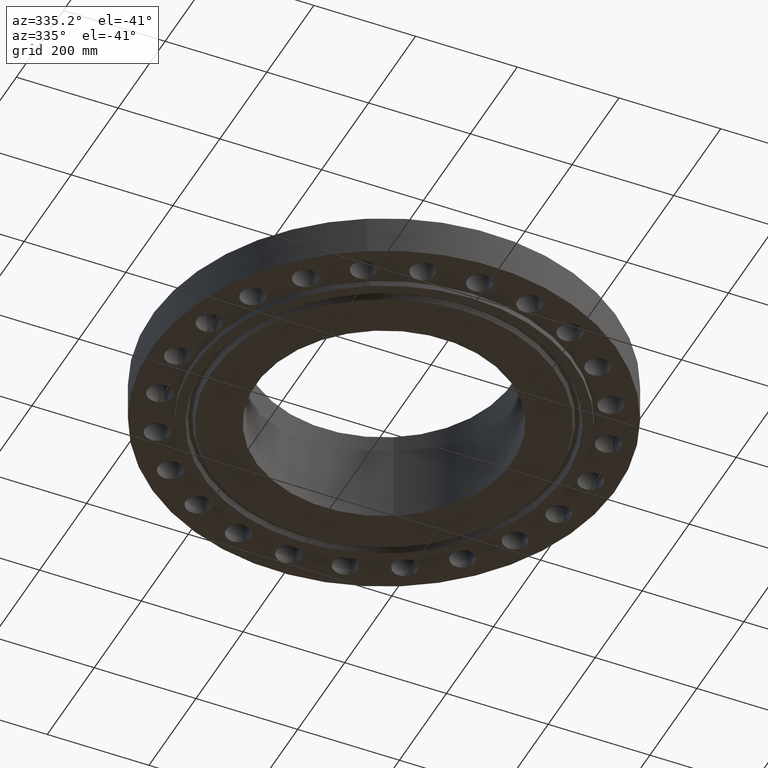
[diagram: clean part render]
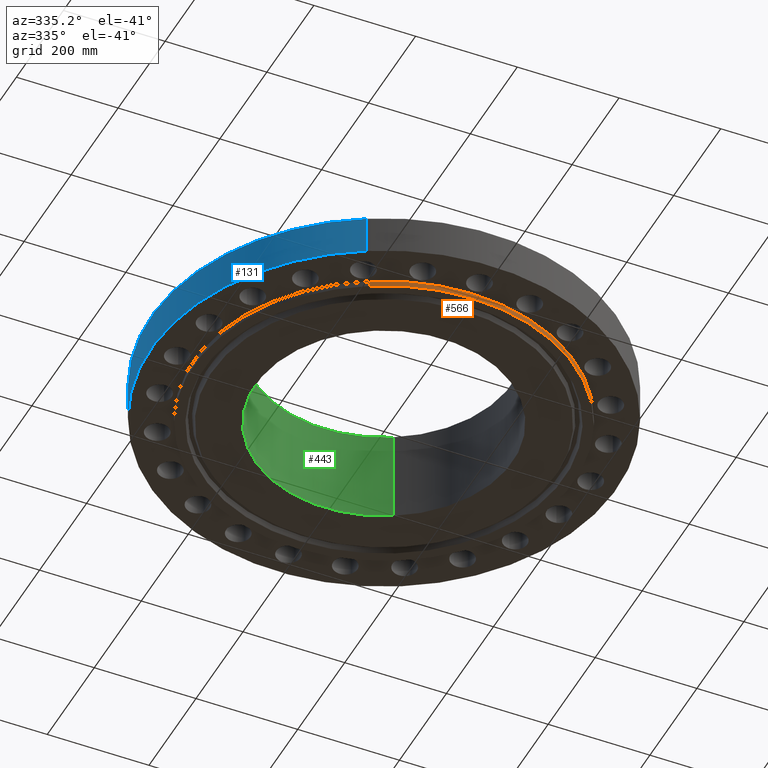
[diagram: same view with three faces highlighted in distinct colors, each labeled with its STEP entity id]
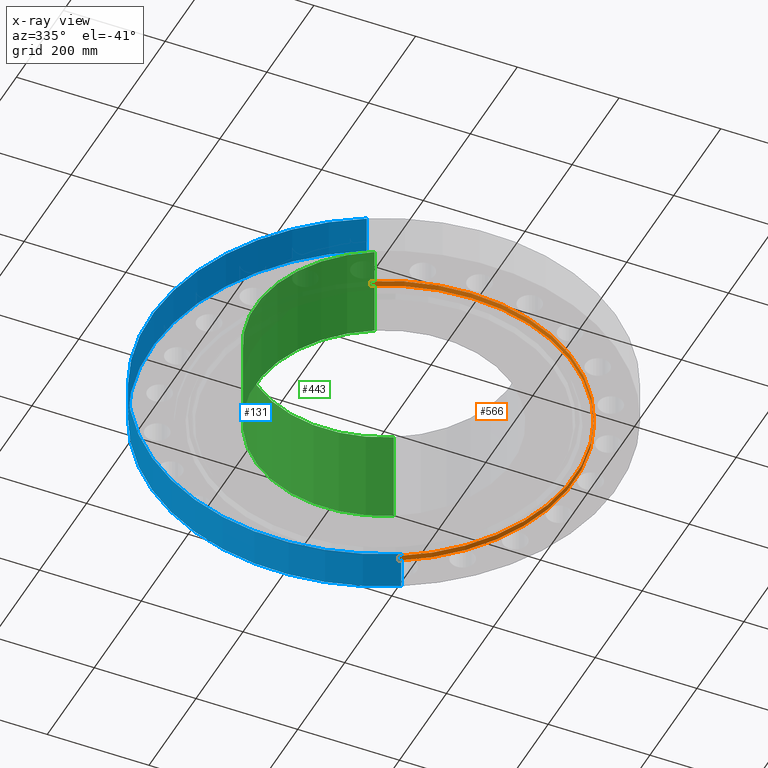
[diagram: x-ray of the same camera — body ghosted, the three highlighted faces saturated]
A machine part, auxiliary view with three faces highlighted in distinct colors.
The next image is the same camera in x-ray (body ghosted, the three faces saturated) — at least one of them is partly hidden behind the body in this view.
Their STEP definitions:

[orange] entity #566 — the highlighted cylindrical surface (partial cylindrical patch) has radius 374.65 mm, axis along (0, 0, -1).
#513=AXIS2_PLACEMENT_3D('Cylinder Axis2P3D',#510,#511,#512) ;
#552=AXIS2_PLACEMENT_3D('Circle Axis2P3D',#550,#551,$) ;
#557=AXIS2_PLACEMENT_3D('Circle Axis2P3D',#555,#556,$) ;
#510=CARTESIAN_POINT('Axis2P3D Location',(0.,0.,3.22100000001)) ;
#519=CARTESIAN_POINT('Vertex',(-7.07152669444,-12.9443427879,-0.438000000002)) ;
#521=CARTESIAN_POINT('Vertex',(7.07152669444,12.9443427879,-0.438000000002)) ;
#524=CARTESIAN_POINT('Line Origine',(-7.07152669444,-12.9443427879,-0.219000000001)) ;
#528=CARTESIAN_POINT('Vertex',(-7.07152669444,-12.9443427879,1.67844740731E-015)) ;
#535=CARTESIAN_POINT('Vertex',(7.07152669444,12.9443427879,1.67844740731E-015)) ;
#538=CARTESIAN_POINT('Line Origine',(7.07152669444,12.9443427879,-0.219000000001)) ;
#550=CARTESIAN_POINT('Axis2P3D Location',(0.,0.,-0.438000000002)) ;
#555=CARTESIAN_POINT('Axis2P3D Location',(0.,0.,1.67844740731E-015)) ;
#511=DIRECTION('Axis2P3D Direction',(0.,0.,-0.0393700787402)) ;
#512=DIRECTION('Axis2P3D XDirection',(0.0188750212049,0.0345504945626,0.)) ;
#525=DIRECTION('Vector Direction',(0.,0.,-0.0393700787402)) ;
#539=DIRECTION('Vector Direction',(0.,0.,-0.0393700787402)) ;
#551=DIRECTION('Axis2P3D Direction',(0.,0.,-0.0393700787402)) ;
#556=DIRECTION('Axis2P3D Direction',(0.,0.,-0.0393700787402)) ;
#526=VECTOR('Line Direction',#525,0.0393700787402) ;
#540=VECTOR('Line Direction',#539,0.0393700787402) ;
#561=ORIENTED_EDGE('',*,*,#554,.F.) ;
#562=ORIENTED_EDGE('',*,*,#542,.T.) ;
#563=ORIENTED_EDGE('',*,*,#559,.T.) ;
#564=ORIENTED_EDGE('',*,*,#530,.F.) ;
#566=ADVANCED_FACE('PartBody',(#565),#514,.T.) ;
#553=CIRCLE('generated circle',#552,14.7500000001) ;
#558=CIRCLE('generated circle',#557,14.7500000001) ;
#514=CYLINDRICAL_SURFACE('generated cylinder',#513,14.7500000001) ;
#530=EDGE_CURVE('',#520,#529,#527,.F.) ;
#542=EDGE_CURVE('',#522,#536,#541,.F.) ;
#554=EDGE_CURVE('',#522,#520,#553,.T.) ;
#559=EDGE_CURVE('',#536,#529,#558,.T.) ;
#560=EDGE_LOOP('',(#561,#562,#563,#564)) ;
#565=FACE_OUTER_BOUND('',#560,.T.) ;
#527=LINE('Line',#524,#526) ;
#541=LINE('Line',#538,#540) ;
#520=VERTEX_POINT('',#519) ;
#522=VERTEX_POINT('',#521) ;
#529=VERTEX_POINT('',#528) ;
#536=VERTEX_POINT('',#535) ;

[blue] entity #131 — the highlighted cylindrical surface (partial cylindrical patch) has radius 457.2 mm, axis along (0, 0, -1).
#95=AXIS2_PLACEMENT_3D('Cylinder Axis2P3D',#92,#93,#94) ;
#99=AXIS2_PLACEMENT_3D('Circle Axis2P3D',#97,#98,$) ;
#115=AXIS2_PLACEMENT_3D('Circle Axis2P3D',#113,#114,$) ;
#92=CARTESIAN_POINT('Axis2P3D Location',(0.,0.,3.22100000001)) ;
#97=CARTESIAN_POINT('Axis2P3D Location',(0.,0.,2.23792987641E-015)) ;
#101=CARTESIAN_POINT('Vertex',(-8.62965969491,-15.7964861141,2.23792987641E-015)) ;
#103=CARTESIAN_POINT('Vertex',(8.62965969491,15.7964861141,2.23792987641E-015)) ;
#106=CARTESIAN_POINT('Line Origine',(-8.62965969491,-15.7964861141,1.50000000001)) ;
#110=CARTESIAN_POINT('Vertex',(-8.62965969491,-15.7964861141,3.00000000001)) ;
#113=CARTESIAN_POINT('Axis2P3D Location',(0.,0.,3.00000000001)) ;
#117=CARTESIAN_POINT('Vertex',(8.62965969491,15.7964861141,3.00000000001)) ;
#120=CARTESIAN_POINT('Line Origine',(8.62965969491,15.7964861141,1.50000000001)) ;
#93=DIRECTION('Axis2P3D Direction',(0.,0.,-0.0393700787402)) ;
#94=DIRECTION('Axis2P3D XDirection',(0.0188750212049,0.0345504945626,0.)) ;
#98=DIRECTION('Axis2P3D Direction',(0.,0.,-0.0393700787402)) ;
#107=DIRECTION('Vector Direction',(0.,0.,-0.0393700787402)) ;
#114=DIRECTION('Axis2P3D Direction',(0.,0.,-0.0393700787402)) ;
#121=DIRECTION('Vector Direction',(0.,0.,-0.0393700787402)) ;
#108=VECTOR('Line Direction',#107,0.0393700787402) ;
#122=VECTOR('Line Direction',#121,0.0393700787402) ;
#126=ORIENTED_EDGE('',*,*,#105,.F.) ;
#127=ORIENTED_EDGE('',*,*,#112,.T.) ;
#128=ORIENTED_EDGE('',*,*,#119,.T.) ;
#129=ORIENTED_EDGE('',*,*,#124,.F.) ;
#131=ADVANCED_FACE('PartBody',(#130),#96,.T.) ;
#100=CIRCLE('generated circle',#99,18.0000000001) ;
#116=CIRCLE('generated circle',#115,18.0000000001) ;
#96=CYLINDRICAL_SURFACE('generated cylinder',#95,18.0000000001) ;
#105=EDGE_CURVE('',#102,#104,#100,.T.) ;
#112=EDGE_CURVE('',#102,#111,#109,.F.) ;
#119=EDGE_CURVE('',#111,#118,#116,.T.) ;
#124=EDGE_CURVE('',#104,#118,#123,.F.) ;
#125=EDGE_LOOP('',(#126,#127,#128,#129)) ;
#130=FACE_OUTER_BOUND('',#125,.T.) ;
#109=LINE('Line',#106,#108) ;
#123=LINE('Line',#120,#122) ;
#102=VERTEX_POINT('',#101) ;
#104=VERTEX_POINT('',#103) ;
#111=VERTEX_POINT('',#110) ;
#118=VERTEX_POINT('',#117) ;

[green] entity #443 — the highlighted cylindrical surface (partial cylindrical patch) has radius 252.425 mm, axis along (0, 0, -1).
#365=AXIS2_PLACEMENT_3D('Circle Axis2P3D',#363,#364,$) ;
#416=AXIS2_PLACEMENT_3D('Cylinder Axis2P3D',#413,#414,#415) ;
#427=AXIS2_PLACEMENT_3D('Circle Axis2P3D',#425,#426,$) ;
#363=CARTESIAN_POINT('Axis2P3D Location',(0.,0.,6.88000000003)) ;
#367=CARTESIAN_POINT('Vertex',(-4.76453100267,-8.7214155001,6.88000000003)) ;
#369=CARTESIAN_POINT('Vertex',(4.76453100267,8.7214155001,6.88000000003)) ;
#413=CARTESIAN_POINT('Axis2P3D Location',(0.,0.,3.22100000001)) ;
#418=CARTESIAN_POINT('Line Origine',(-4.76453100267,-8.7214155001,3.22100000001)) ;
#422=CARTESIAN_POINT('Vertex',(-4.76453100267,-8.7214155001,-0.438000000002)) ;
#425=CARTESIAN_POINT('Axis2P3D Location',(0.,0.,-0.438000000002)) ;
#429=CARTESIAN_POINT('Vertex',(4.76453100267,8.7214155001,-0.438000000002)) ;
#432=CARTESIAN_POINT('Line Origine',(4.76453100267,8.7214155001,3.22100000001)) ;
#364=DIRECTION('Axis2P3D Direction',(0.,0.,-0.0393700787402)) ;
#414=DIRECTION('Axis2P3D Direction',(0.,0.,-0.0393700787402)) ;
#415=DIRECTION('Axis2P3D XDirection',(0.0188750212049,0.0345504945626,0.)) ;
#419=DIRECTION('Vector Direction',(0.,0.,-0.0393700787402)) ;
#426=DIRECTION('Axis2P3D Direction',(0.,0.,-0.0393700787402)) ;
#433=DIRECTION('Vector Direction',(0.,0.,-0.0393700787402)) ;
#420=VECTOR('Line Direction',#419,0.0393700787402) ;
#434=VECTOR('Line Direction',#433,0.0393700787402) ;
#438=ORIENTED_EDGE('',*,*,#371,.F.) ;
#439=ORIENTED_EDGE('',*,*,#424,.T.) ;
#440=ORIENTED_EDGE('',*,*,#431,.T.) ;
#441=ORIENTED_EDGE('',*,*,#436,.F.) ;
#443=ADVANCED_FACE('PartBody',(#442),#417,.F.) ;
#366=CIRCLE('generated circle',#365,9.93800000004) ;
#428=CIRCLE('generated circle',#427,9.93800000004) ;
#417=CYLINDRICAL_SURFACE('generated cylinder',#416,9.93800000004) ;
#371=EDGE_CURVE('',#368,#370,#366,.T.) ;
#424=EDGE_CURVE('',#368,#423,#421,.T.) ;
#431=EDGE_CURVE('',#423,#430,#428,.T.) ;
#436=EDGE_CURVE('',#370,#430,#435,.T.) ;
#437=EDGE_LOOP('',(#438,#439,#440,#441)) ;
#442=FACE_OUTER_BOUND('',#437,.T.) ;
#421=LINE('Line',#418,#420) ;
#435=LINE('Line',#432,#434) ;
#368=VERTEX_POINT('',#367) ;
#370=VERTEX_POINT('',#369) ;
#423=VERTEX_POINT('',#422) ;
#430=VERTEX_POINT('',#429) ;